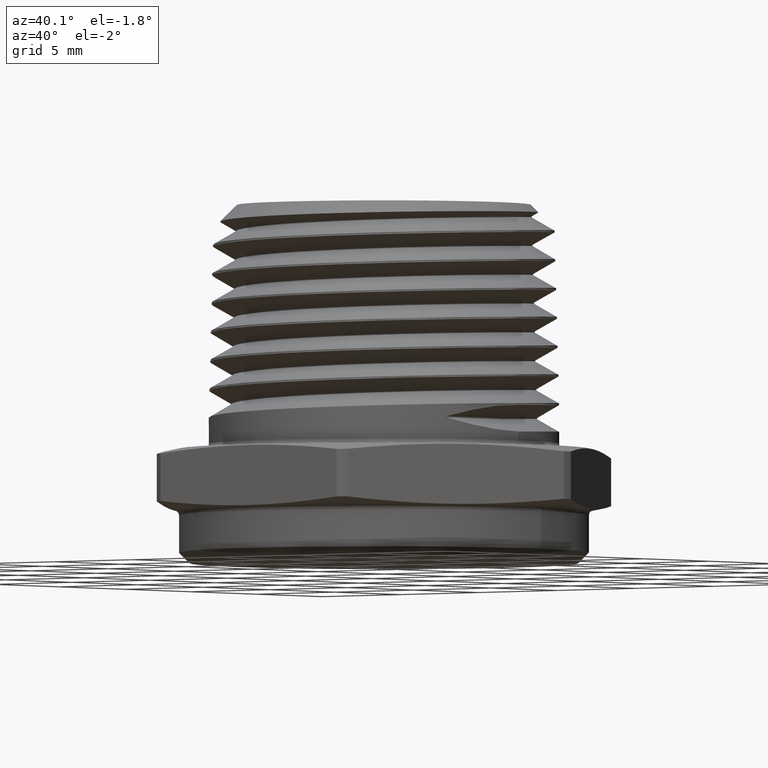
[diagram: clean part render]
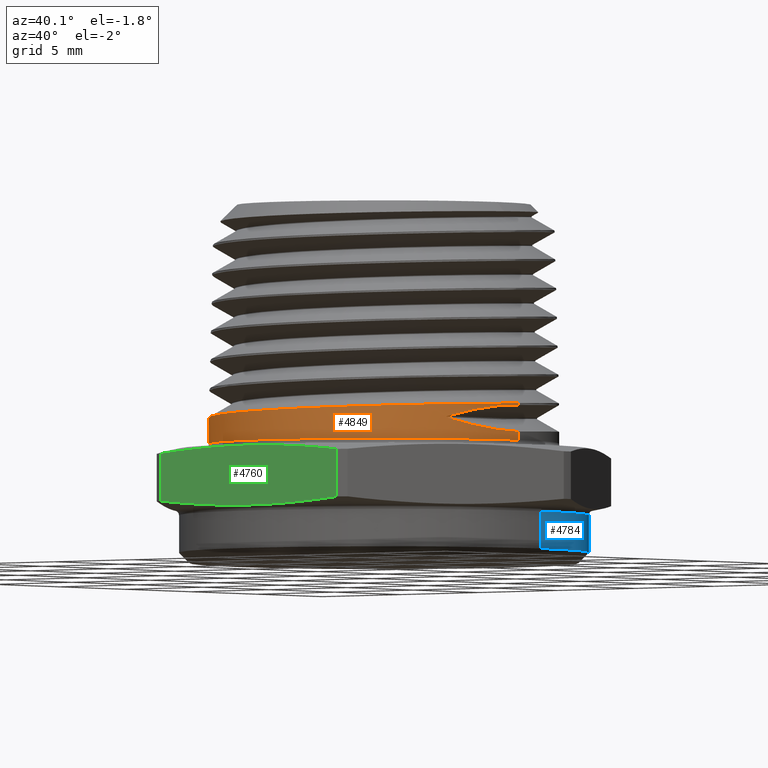
[diagram: same view with three faces highlighted in distinct colors, each labeled with its STEP entity id]
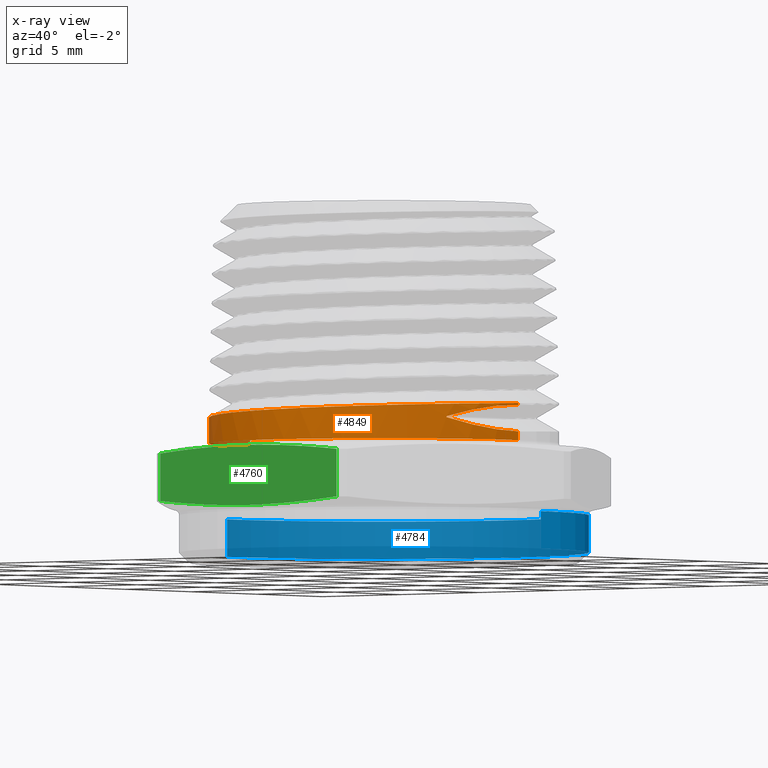
[diagram: x-ray of the same camera — body ghosted, the three highlighted faces saturated]
A machine part, auxiliary view with three faces highlighted in distinct colors.
The next image is the same camera in x-ray (body ghosted, the three faces saturated) — at least one of them is partly hidden behind the body in this view.
Their STEP definitions:

[orange] entity #4849 — the highlighted cylindrical surface (partial cylindrical patch) has radius 8.5725 mm, axis along (-0, -0, -1).
#85 = VERTEX_POINT ( 'NONE', #5159 ) ;
#308 = CARTESIAN_POINT ( 'NONE',  ( 0.3375000000000000200, 4.133182947122317800E-017, 0.5899999999999999700 ) ) ;
#310 = DIRECTION ( 'NONE',  ( -0.0000000000000000000, -0.0000000000000000000, -1.000000000000000000 ) ) ;
#311 = DIRECTION ( 'NONE',  ( -0.0000000000000000000, -0.0000000000000000000, -1.000000000000000000 ) ) ;
#356 = DIRECTION ( 'NONE',  ( -0.0000000000000000000, -0.0000000000000000000, -1.000000000000000000 ) ) ;
#357 = CARTESIAN_POINT ( 'NONE',  ( 0.3375000000000000200, 4.133182947122317800E-017, 0.5899999999999999700 ) ) ;
#358 = CARTESIAN_POINT ( 'NONE',  ( -0.3375000000000000200, 0.0000000000000000000, 0.5899999999999999700 ) ) ;
#560 = CARTESIAN_POINT ( 'NONE',  ( 0.3374999999999998600, 5.805176986536559600E-016, 0.2014728601390426400 ) ) ;
#573 = CARTESIAN_POINT ( 'NONE',  ( 0.3375000000000000200, 4.959819536546779600E-016, 0.1467360340879728100 ) ) ;
#577 = CARTESIAN_POINT ( 'NONE',  ( 0.3375000000000000800, 4.959819536546780600E-016, 0.1976511307851486200 ) ) ;
#579 = CARTESIAN_POINT ( 'NONE',  ( -0.3375000000000000200, 6.471767174693017700E-017, 0.1741044471135051700 ) ) ;
#1050 = CARTESIAN_POINT ( 'NONE',  ( 0.2952062328241049100, -0.1635834041148442300, 0.1711543519520193300 ) ) ;
#1067 = DIRECTION ( 'NONE',  ( -1.000000000000000000, 0.0000000000000000000, 0.0000000000000000000 ) ) ;
#1068 = CARTESIAN_POINT ( 'NONE',  ( 0.0000000000000000000, 0.0000000000000000000, 0.5899999999999999700 ) ) ;
#1069 = DIRECTION ( 'NONE',  ( -0.0000000000000000000, -0.0000000000000000000, -1.000000000000000000 ) ) ;
#1095 = CARTESIAN_POINT ( 'NONE',  ( 0.3375000000000000200, 4.133182947122317800E-017, 0.1299999999999999800 ) ) ;
#1100 = CARTESIAN_POINT ( 'NONE',  ( -0.3375000000000000200, 0.0000000000000000000, 0.1299999999999999800 ) ) ;
#1937 = EDGE_LOOP ( 'NONE', ( #2967, #4620, #4621, #4622, #4623, #4624, #4625, #4626 ) ) ;
#2023 = LINE ( 'NONE', #358, #2033 ) ;
#2027 = LINE ( 'NONE', #308, #2028 ) ;
#2028 = VECTOR ( 'NONE', #310, 39.37007874015748100 ) ;
#2033 = VECTOR ( 'NONE', #311, 39.37007874015748100 ) ;
#2034 = LINE ( 'NONE', #357, #2036 ) ;
#2036 = VECTOR ( 'NONE', #356, 39.37007874015748100 ) ;
#2762 = EDGE_CURVE ( 'NONE', #4663, #4653, #5218, .T. ) ;
#2763 = EDGE_CURVE ( 'NONE', #4660, #4842, #5219, .T. ) ;
#2764 = EDGE_CURVE ( 'NONE', #4842, #85, #4675, .T. ) ;
#2765 = EDGE_CURVE ( 'NONE', #85, #4662, #5220, .T. ) ;
#2814 = EDGE_CURVE ( 'NONE', #4861, #4864, #4734, .T. ) ;
#2863 = EDGE_CURVE ( 'NONE', #4660, #4864, #2027, .T. ) ;
#2867 = EDGE_CURVE ( 'NONE', #4663, #4861, #2023, .T. ) ;
#2869 = EDGE_CURVE ( 'NONE', #4653, #4662, #2034, .T. ) ;
#2900 = AXIS2_PLACEMENT_3D ( 'NONE', #3933, #3935, #3937 ) ;
#2967 = ORIENTED_EDGE ( 'NONE', *, *, #2869, .F. ) ;
#3025 = FACE_OUTER_BOUND ( 'NONE', #1937, .T. ) ;
#3686 = CARTESIAN_POINT ( 'NONE',  ( -0.3369645404158157500, -0.02197321989955729900, 0.1746679456345691900 ) ) ;
#3688 = CARTESIAN_POINT ( 'NONE',  ( -0.3374999999999998600, -0.01098944559102794600, 0.1743881094980423700 ) ) ;
#3757 = CARTESIAN_POINT ( 'NONE',  ( 0.3230963803228608100, -0.1132522264469913700, 0.1550519677858742400 ) ) ;
#3798 = CARTESIAN_POINT ( 'NONE',  ( -0.3375000000000000200, 6.471767174693017700E-017, 0.1741044471135051700 ) ) ;
#3799 = CARTESIAN_POINT ( 'NONE',  ( 0.3230963803228516000, -0.1132522264470270100, 0.1893351970872418900 ) ) ;
#3801 = CARTESIAN_POINT ( 'NONE',  ( -0.3348106432476120100, -0.04392900019937418700, 0.1752313727634535500 ) ) ;
#3803 = CARTESIAN_POINT ( 'NONE',  ( -0.3331825041091704400, -0.05494770295683271100, 0.1755162084725595800 ) ) ;
#3805 = CARTESIAN_POINT ( 'NONE',  ( -0.3266754525170568200, -0.08765684879993851400, 0.1763770072996060400 ) ) ;
#3807 = CARTESIAN_POINT ( 'NONE',  ( -0.3202685761403507000, -0.1087117440324953800, 0.1769543440914180500 ) ) ;
#3808 = CARTESIAN_POINT ( 'NONE',  ( -0.3076520004891599200, -0.1392030356472389000, 0.1778061985975364600 ) ) ;
#3809 = CARTESIAN_POINT ( 'NONE',  ( -0.3029417731762998900, -0.1491836501335386300, 0.1780870400506956400 ) ) ;
#3810 = CARTESIAN_POINT ( 'NONE',  ( -0.2924838707315875500, -0.1687680798143856000, 0.1786540568874291100 ) ) ;
#3811 = CARTESIAN_POINT ( 'NONE',  ( -0.2867424203332228900, -0.1783449521867601900, 0.1789396235332428000 ) ) ;
#3812 = CARTESIAN_POINT ( 'NONE',  ( -0.2683395951555704900, -0.2058826413954180100, 0.1797945095161117000 ) ) ;
#3814 = CARTESIAN_POINT ( 'NONE',  ( -0.2544023082175305700, -0.2228755200838947500, 0.1803710229280821300 ) ) ;
#3816 = CARTESIAN_POINT ( 'NONE',  ( -0.2309911699952086900, -0.2463153971111288800, 0.1812262977068412600 ) ) ;
#3818 = CARTESIAN_POINT ( 'NONE',  ( -0.2227181771932317000, -0.2538227883455261300, 0.1815105797331847700 ) ) ;
#3820 = CARTESIAN_POINT ( 'NONE',  ( -0.2055637111865465700, -0.2679047498253578400, 0.1820774061282385000 ) ) ;
#3822 = CARTESIAN_POINT ( 'NONE',  ( -0.1966994273068493300, -0.2744750423544897700, 0.1823595939077809500 ) ) ;
#3824 = CARTESIAN_POINT ( 'NONE',  ( -0.1692683784412080700, -0.2928110660020377700, 0.1832112026905123300 ) ) ;
#3826 = CARTESIAN_POINT ( 'NONE',  ( -0.1498715857224460200, -0.3032151946568814600, 0.1837885979983499300 ) ) ;
#3828 = CARTESIAN_POINT ( 'NONE',  ( -0.1087835399348994100, -0.3202609684569806000, 0.1849369984780527300 ) ) ;
#3830 = CARTESIAN_POINT ( 'NONE',  ( -0.08758191285678054700, -0.3266783713519043100, 0.1854939808340018700 ) ) ;
#3832 = CARTESIAN_POINT ( 'NONE',  ( -0.05524969542904188700, -0.3331283477838450900, 0.1863448792731467200 ) ) ;
#3834 = CARTESIAN_POINT ( 'NONE',  ( -0.04436066851125240000, -0.3347545891615038000, 0.1866309376903736700 ) ) ;
#3836 = CARTESIAN_POINT ( 'NONE',  ( -0.02235525338757929400, -0.3369402714449988300, 0.1872077647673321100 ) ) ;
#3838 = CARTESIAN_POINT ( 'NONE',  ( -0.01117976180937944500, -0.3374966752329806000, 0.1875000543205662100 ) ) ;
#3840 = CARTESIAN_POINT ( 'NONE',  ( 0.02205705073768541400, -0.3375066043538670900, 0.1883580443980429600 ) ) ;
#3842 = CARTESIAN_POINT ( 'NONE',  ( 0.04393860444842655900, -0.3353519170590913400, 0.1889108707673311200 ) ) ;
#3844 = CARTESIAN_POINT ( 'NONE',  ( 0.08715690654057645100, -0.3267953226078368400, 0.1900478798400784300 ) ) ;
#3846 = CARTESIAN_POINT ( 'NONE',  ( 0.1086681625336857900, -0.3202858836234635000, 0.1906373352952260300 ) ) ;
#3848 = CARTESIAN_POINT ( 'NONE',  ( 0.1493914100420383800, -0.3034370171923028700, 0.1917750419181968300 ) ) ;
#3850 = CARTESIAN_POINT ( 'NONE',  ( 0.1687926522669496700, -0.2930967455382965700, 0.1923277963249877800 ) ) ;
#3852 = CARTESIAN_POINT ( 'NONE',  ( 0.1964311255312097300, -0.2746701036673908100, 0.1931850524542902400 ) ) ;
#3854 = CARTESIAN_POINT ( 'NONE',  ( 0.2054255281404876500, -0.2680092947943323900, 0.1934758586534053300 ) ) ;
#3856 = CARTESIAN_POINT ( 'NONE',  ( 0.2225352871882946800, -0.2539816443445802600, 0.1940529896875611800 ) ) ;
#3858 = CARTESIAN_POINT ( 'NONE',  ( 0.2306974549091718200, -0.2465881706504672000, 0.1943406598464195700 ) ) ;
#3860 = CARTESIAN_POINT ( 'NONE',  ( 0.2540288573239419800, -0.2232907433637705300, 0.1951919063287163000 ) ) ;
#3862 = CARTESIAN_POINT ( 'NONE',  ( 0.2680927014295632600, -0.2062230853577618500, 0.1957479504128308800 ) ) ;
#3864 = CARTESIAN_POINT ( 'NONE',  ( 0.2928533714061928300, -0.1692293129168293800, 0.1968968042422196400 ) ) ;
#3866 = CARTESIAN_POINT ( 'NONE',  ( 0.3032274360908118700, -0.1498100611841283200, 0.1974743034348939200 ) ) ;
#3868 = CARTESIAN_POINT ( 'NONE',  ( 0.3158855728386670800, -0.1193460325270052600, 0.1983260949267054700 ) ) ;
#3870 = CARTESIAN_POINT ( 'NONE',  ( 0.3196175754941710200, -0.1089671752625806100, 0.1986067814250908600 ) ) ;
#3872 = CARTESIAN_POINT ( 'NONE',  ( 0.3260815964747099100, -0.08774982786297939900, 0.1991732322385087500 ) ) ;
#3874 = CARTESIAN_POINT ( 'NONE',  ( 0.3288072958161828400, -0.07690716153949987700, 0.1994591177420901900 ) ) ;
#3876 = CARTESIAN_POINT ( 'NONE',  ( 0.3353101518836810700, -0.04431872240709031800, 0.2003167617276520900 ) ) ;
#3878 = CARTESIAN_POINT ( 'NONE',  ( 0.3375000000000002400, -0.02227797333612575200, 0.2008978153837216500 ) ) ;
#3880 = CARTESIAN_POINT ( 'NONE',  ( 0.3374999999999998600, 5.805176986536559600E-016, 0.2014728601390426400 ) ) ;
#3882 = CARTESIAN_POINT ( 'NONE',  ( 0.2952062328240704400, -0.1635834041149062700, 0.5900000000000242800 ) ) ;
#3884 = CARTESIAN_POINT ( 'NONE',  ( 0.3375000000000000800, -0.05754205221344889400, 0.1467360340879728100 ) ) ;
#3887 = CARTESIAN_POINT ( 'NONE',  ( 0.3375000000000000200, 4.959819536546779600E-016, 0.1467360340879728100 ) ) ;
#3889 = CARTESIAN_POINT ( 'NONE',  ( 0.2952062328241049100, -0.1635834041148442300, 0.1711543519520193300 ) ) ;
#3894 = DIRECTION ( 'NONE',  ( 0.0000000000000000000, 0.0000000000000000000, 1.000000000000000000 ) ) ;
#3896 = CARTESIAN_POINT ( 'NONE',  ( 0.2952062328241047400, -0.1635834041149063200, 0.1732328129211020100 ) ) ;
#3906 = CARTESIAN_POINT ( 'NONE',  ( 0.3375000000000000200, -0.05754205221346761500, 0.1976511307851485400 ) ) ;
#3908 = CARTESIAN_POINT ( 'NONE',  ( 0.3375000000000000800, 4.959819536546780600E-016, 0.1976511307851486200 ) ) ;
#3933 = CARTESIAN_POINT ( 'NONE',  ( 0.0000000000000000000, 0.0000000000000000000, 0.1299999999999999800 ) ) ;
#3935 = DIRECTION ( 'NONE',  ( -0.0000000000000000000, 0.0000000000000000000, 1.000000000000000000 ) ) ;
#3937 = DIRECTION ( 'NONE',  ( 1.000000000000000000, 0.0000000000000000000, 0.0000000000000000000 ) ) ;
#4349 = AXIS2_PLACEMENT_3D ( 'NONE', #1068, #1069, #1067 ) ;
#4620 = ORIENTED_EDGE ( 'NONE', *, *, #2762, .F. ) ;
#4621 = ORIENTED_EDGE ( 'NONE', *, *, #2867, .T. ) ;
#4622 = ORIENTED_EDGE ( 'NONE', *, *, #2814, .T. ) ;
#4623 = ORIENTED_EDGE ( 'NONE', *, *, #2863, .F. ) ;
#4624 = ORIENTED_EDGE ( 'NONE', *, *, #2763, .T. ) ;
#4625 = ORIENTED_EDGE ( 'NONE', *, *, #2764, .T. ) ;
#4626 = ORIENTED_EDGE ( 'NONE', *, *, #2765, .T. ) ;
#4653 = VERTEX_POINT ( 'NONE', #560 ) ;
#4660 = VERTEX_POINT ( 'NONE', #573 ) ;
#4662 = VERTEX_POINT ( 'NONE', #577 ) ;
#4663 = VERTEX_POINT ( 'NONE', #579 ) ;
#4675 = LINE ( 'NONE', #3882, #4676 ) ;
#4676 = VECTOR ( 'NONE', #3894, 39.37007874015748100 ) ;
#4734 = CIRCLE ( 'NONE', #2900, 0.3375000000000000200 ) ;
#4805 = CYLINDRICAL_SURFACE ( 'NONE', #4349, 0.3375000000000000200 ) ;
#4842 = VERTEX_POINT ( 'NONE', #1050 ) ;
#4849 = ADVANCED_FACE ( 'NONE', ( #3025 ), #4805, .T. ) ;
#4861 = VERTEX_POINT ( 'NONE', #1100 ) ;
#4864 = VERTEX_POINT ( 'NONE', #1095 ) ;
#5159 = CARTESIAN_POINT ( 'NONE',  ( 0.2952062328241047400, -0.1635834041149063200, 0.1732328129211020100 ) ) ;
#5218 = B_SPLINE_CURVE_WITH_KNOTS ( 'NONE', 3,
 ( #3798, #3688, #3686, #3801, #3803, #3805, #3807, #3808, #3809, #3810, #3811, #3812, #3814, #3816, #3818, #3820, #3822, #3824, #3826, #3828, #3830, #3832, #3834, #3836, #3838, #3840, #3842, #3844, #3846, #3848, #3850, #3852, #3854, #3856, #3858, #3860, #3862, #3864, #3866, #3868, #3870, #3872, #3874, #3876, #3878, #3880 ),
 .UNSPECIFIED., .F., .F.,
 ( 4, 2, 2, 2, 2, 2, 2, 2, 2, 2, 2, 2, 2, 2, 2, 2, 2, 2, 2, 2, 2, 2, 4 ),
 ( 0.02686333773267626800, 0.02770280303503999300, 0.02854226833740371900, 0.03022119894213117300, 0.03106066424449489800, 0.03190012954685862700, 0.03357906015158607100, 0.03441852545394980000, 0.03525799075631352900, 0.03693692136104097200, 0.03861585196576843000, 0.03945531726813215200, 0.04029478257049587400, 0.04197371317522333200, 0.04365264377995078200, 0.04533157438467823300, 0.04617103968704196200, 0.04701050498940567700, 0.04868943559413313500, 0.05036836619886058500, 0.05120783150122431400, 0.05204729680358804300, 0.05372622740831549400 ),
 .UNSPECIFIED. ) ;
#5219 =( BOUNDED_CURVE ( )  B_SPLINE_CURVE ( 3, ( #3887, #3884, #3757, #3889 ),
 .UNSPECIFIED., .F., .T. ) 
 B_SPLINE_CURVE_WITH_KNOTS ( ( 4, 4 ),
 ( 0.0000000000000000000, 0.5060105123223457300 ),
 .UNSPECIFIED. ) 
 CURVE ( )  GEOMETRIC_REPRESENTATION_ITEM ( )  RATIONAL_B_SPLINE_CURVE ( ( 1.000000000000000000, 0.9787763567751383000, 0.9787763567751383000, 1.000000000000000000 ) ) 
 REPRESENTATION_ITEM ( '' )  );
#5220 =( BOUNDED_CURVE ( )  B_SPLINE_CURVE ( 3, ( #3896, #3799, #3906, #3908 ),
 .UNSPECIFIED., .F., .T. ) 
 B_SPLINE_CURVE_WITH_KNOTS ( ( 4, 4 ),
 ( 2.635582141267286600, 3.141592653589793100 ),
 .UNSPECIFIED. ) 
 CURVE ( )  GEOMETRIC_REPRESENTATION_ITEM ( )  RATIONAL_B_SPLINE_CURVE ( ( 1.000000000000000000, 0.9787763567751248700, 0.9787763567751248700, 1.000000000000000000 ) ) 
 REPRESENTATION_ITEM ( '' )  );

[blue] entity #4784 — the highlighted cylindrical surface (partial cylindrical patch) has radius 10.033 mm, axis along (-0, -0, 1).
#551 = CARTESIAN_POINT ( 'NONE',  ( 0.3950000000000000200, 0.0000000000000000000, -0.008097840331950146400 ) ) ;
#584 = CARTESIAN_POINT ( 'NONE',  ( 0.3950000000000000200, 0.0000000000000000000, -0.08000000000000008500 ) ) ;
#997 = DIRECTION ( 'NONE',  ( 1.000000000000000000, 0.0000000000000000000, 0.0000000000000000000 ) ) ;
#999 = CARTESIAN_POINT ( 'NONE',  ( 0.0000000000000000000, 0.0000000000000000000, -0.1000000000000000100 ) ) ;
#1000 = DIRECTION ( 'NONE',  ( -0.0000000000000000000, -0.0000000000000000000, 1.000000000000000000 ) ) ;
#1097 = CARTESIAN_POINT ( 'NONE',  ( -0.3950000000000000200, 4.837354856632045600E-017, -0.08000000000000008500 ) ) ;
#1101 = CARTESIAN_POINT ( 'NONE',  ( -0.3950000000000000200, 4.837354856632045600E-017, -0.008097840331950146400 ) ) ;
#1183 = ORIENTED_EDGE ( 'NONE', *, *, #2836, .T. ) ;
#1184 = ORIENTED_EDGE ( 'NONE', *, *, #2831, .T. ) ;
#1185 = ORIENTED_EDGE ( 'NONE', *, *, #2826, .T. ) ;
#1186 = ORIENTED_EDGE ( 'NONE', *, *, #2818, .F. ) ;
#1933 = EDGE_LOOP ( 'NONE', ( #1183, #1184, #1185, #1186 ) ) ;
#1982 = VECTOR ( 'NONE', #3918, 39.37007874015748100 ) ;
#1993 = CIRCLE ( 'NONE', #2908, 0.3950000000000000200 ) ;
#1994 = LINE ( 'NONE', #4045, #1998 ) ;
#1998 = VECTOR ( 'NONE', #3993, 39.37007874015748100 ) ;
#2001 = CIRCLE ( 'NONE', #4271, 0.3950000000000000200 ) ;
#2818 = EDGE_CURVE ( 'NONE', #4740, #4745, #4738, .T. ) ;
#2826 = EDGE_CURVE ( 'NONE', #4862, #4745, #1993, .T. ) ;
#2831 = EDGE_CURVE ( 'NONE', #4858, #4862, #1994, .T. ) ;
#2836 = EDGE_CURVE ( 'NONE', #4740, #4858, #2001, .T. ) ;
#2908 = AXIS2_PLACEMENT_3D ( 'NONE', #4013, #4015, #4017 ) ;
#2987 = FACE_OUTER_BOUND ( 'NONE', #1933, .T. ) ;
#2997 = CYLINDRICAL_SURFACE ( 'NONE', #4330, 0.3950000000000000200 ) ;
#3918 = DIRECTION ( 'NONE',  ( -0.0000000000000000000, -0.0000000000000000000, 1.000000000000000000 ) ) ;
#3956 = CARTESIAN_POINT ( 'NONE',  ( 0.3950000000000000200, 0.0000000000000000000, -0.1000000000000000100 ) ) ;
#3993 = DIRECTION ( 'NONE',  ( -0.0000000000000000000, -0.0000000000000000000, 1.000000000000000000 ) ) ;
#4013 = CARTESIAN_POINT ( 'NONE',  ( 0.0000000000000000000, 0.0000000000000000000, -0.008097840331950146400 ) ) ;
#4015 = DIRECTION ( 'NONE',  ( -0.0000000000000000000, -0.0000000000000000000, -1.000000000000000000 ) ) ;
#4017 = DIRECTION ( 'NONE',  ( -1.000000000000000000, 0.0000000000000000000, 0.0000000000000000000 ) ) ;
#4045 = CARTESIAN_POINT ( 'NONE',  ( -0.3950000000000000200, 4.837354856632045600E-017, -0.1000000000000000100 ) ) ;
#4085 = CARTESIAN_POINT ( 'NONE',  ( 0.0000000000000000000, 0.0000000000000000000, -0.08000000000000008500 ) ) ;
#4086 = DIRECTION ( 'NONE',  ( 0.0000000000000000000, 0.0000000000000000000, 1.000000000000000000 ) ) ;
#4088 = DIRECTION ( 'NONE',  ( -1.000000000000000000, 0.0000000000000000000, 0.0000000000000000000 ) ) ;
#4271 = AXIS2_PLACEMENT_3D ( 'NONE', #4085, #4086, #4088 ) ;
#4330 = AXIS2_PLACEMENT_3D ( 'NONE', #999, #1000, #997 ) ;
#4738 = LINE ( 'NONE', #3956, #1982 ) ;
#4740 = VERTEX_POINT ( 'NONE', #584 ) ;
#4745 = VERTEX_POINT ( 'NONE', #551 ) ;
#4784 = ADVANCED_FACE ( 'NONE', ( #2987 ), #2997, .T. ) ;
#4858 = VERTEX_POINT ( 'NONE', #1097 ) ;
#4862 = VERTEX_POINT ( 'NONE', #1101 ) ;

[green] entity #4760 — the highlighted planar face has unit normal (0, 1, 0).
#82 = VERTEX_POINT ( 'NONE', #5155 ) ;
#86 = VERTEX_POINT ( 'NONE', #5012 ) ;
#87 = VERTEX_POINT ( 'NONE', #5156 ) ;
#92 = VERTEX_POINT ( 'NONE', #5046 ) ;
#627 = PLANE ( 'NONE',  #4291 ) ;
#628 = CARTESIAN_POINT ( 'NONE',  ( -0.2338268590217984200, -0.4049999999999999700, 0.1200000000000000000 ) ) ;
#633 = DIRECTION ( 'NONE',  ( 0.0000000000000000000, 1.000000000000000000, 0.0000000000000000000 ) ) ;
#634 = DIRECTION ( 'NONE',  ( 0.0000000000000000000, -0.0000000000000000000, 1.000000000000000000 ) ) ;
#651 = ORIENTED_EDGE ( 'NONE', *, *, #2791, .T. ) ;
#653 = ORIENTED_EDGE ( 'NONE', *, *, #2778, .T. ) ;
#655 = ORIENTED_EDGE ( 'NONE', *, *, #2788, .T. ) ;
#657 = ORIENTED_EDGE ( 'NONE', *, *, #2771, .T. ) ;
#1920 = EDGE_LOOP ( 'NONE', ( #651, #653, #655, #657 ) ) ;
#2045 = FACE_OUTER_BOUND ( 'NONE', #1920, .T. ) ;
#2771 = EDGE_CURVE ( 'NONE', #82, #86, #4678, .T. ) ;
#2778 = EDGE_CURVE ( 'NONE', #87, #92, #4691, .T. ) ;
#2788 = EDGE_CURVE ( 'NONE', #92, #82, #5224, .T. ) ;
#2791 = EDGE_CURVE ( 'NONE', #86, #87, #5227, .T. ) ;
#3915 = DIRECTION ( 'NONE',  ( -0.0000000000000000000, -0.0000000000000000000, -1.000000000000000000 ) ) ;
#4011 = CARTESIAN_POINT ( 'NONE',  ( -0.2215832922029030100, -0.4049999999999998600, 0.0000000000000000000 ) ) ;
#4043 = DIRECTION ( 'NONE',  ( 0.0000000000000000000, 0.0000000000000000000, 1.000000000000000000 ) ) ;
#4048 = CARTESIAN_POINT ( 'NONE',  ( 0.2215832922029030100, -0.4049999999999998600, 0.0000000000000000000 ) ) ;
#4093 = CARTESIAN_POINT ( 'NONE',  ( 0.2215832922029030100, -0.4049999999999998600, 0.1058323148701303800 ) ) ;
#4096 = CARTESIAN_POINT ( 'NONE',  ( 0.1478797044767214400, -0.4049999999999998600, 0.1133517257805391900 ) ) ;
#4109 = CARTESIAN_POINT ( 'NONE',  ( 0.07410859054405169500, -0.4049999999999999200, 0.1178652587683187800 ) ) ;
#4111 = CARTESIAN_POINT ( 'NONE',  ( -0.03669986454074530100, -0.4049999999999999700, 0.1178790002141681500 ) ) ;
#4113 = CARTESIAN_POINT ( 'NONE',  ( -0.07366055179631760000, -0.4050000000000000300, 0.1167913988028559700 ) ) ;
#4115 = CARTESIAN_POINT ( 'NONE',  ( -0.1476261385661213300, -0.4049999999999999700, 0.1126481207821148400 ) ) ;
#4117 = CARTESIAN_POINT ( 'NONE',  ( -0.1846688683639233800, -0.4050000000000000300, 0.1095984099806900600 ) ) ;
#4119 = CARTESIAN_POINT ( 'NONE',  ( -0.2215832922029030100, -0.4049999999999998600, 0.1058323148701303800 ) ) ;
#4133 = CARTESIAN_POINT ( 'NONE',  ( -0.1846688683639232400, -0.4049999999999999200, 0.01040159001930993100 ) ) ;
#4135 = CARTESIAN_POINT ( 'NONE',  ( -0.2215832922029030100, -0.4049999999999998600, 0.01416768512986962300 ) ) ;
#4148 = CARTESIAN_POINT ( 'NONE',  ( -0.1476261385661213300, -0.4050000000000000300, 0.007351879217885152200 ) ) ;
#4150 = CARTESIAN_POINT ( 'NONE',  ( -0.07366055179631760000, -0.4049999999999998600, 0.003208601197143993600 ) ) ;
#4152 = CARTESIAN_POINT ( 'NONE',  ( -0.03669986454074521800, -0.4050000000000000300, 0.002120999785831824700 ) ) ;
#4154 = CARTESIAN_POINT ( 'NONE',  ( 0.07410859054405169500, -0.4049999999999999200, 0.002134741231681211900 ) ) ;
#4156 = CARTESIAN_POINT ( 'NONE',  ( 0.1478797044767214400, -0.4049999999999999700, 0.006648274219460789800 ) ) ;
#4158 = CARTESIAN_POINT ( 'NONE',  ( 0.2215832922029030100, -0.4049999999999998600, 0.01416768512986962300 ) ) ;
#4291 = AXIS2_PLACEMENT_3D ( 'NONE', #628, #633, #634 ) ;
#4678 = LINE ( 'NONE', #4011, #4684 ) ;
#4684 = VECTOR ( 'NONE', #3915, 39.37007874015748100 ) ;
#4691 = LINE ( 'NONE', #4048, #4695 ) ;
#4695 = VECTOR ( 'NONE', #4043, 39.37007874015748100 ) ;
#4760 = ADVANCED_FACE ( 'NONE', ( #2045 ), #627, .F. ) ;
#5012 = CARTESIAN_POINT ( 'NONE',  ( -0.2215832922029030100, -0.4049999999999998600, 0.01416768512986962300 ) ) ;
#5046 = CARTESIAN_POINT ( 'NONE',  ( 0.2215832922029030100, -0.4049999999999998600, 0.1058323148701303800 ) ) ;
#5155 = CARTESIAN_POINT ( 'NONE',  ( -0.2215832922029030100, -0.4049999999999998600, 0.1058323148701303800 ) ) ;
#5156 = CARTESIAN_POINT ( 'NONE',  ( 0.2215832922029030100, -0.4049999999999998600, 0.01416768512986962300 ) ) ;
#5224 = B_SPLINE_CURVE_WITH_KNOTS ( 'NONE', 3,
 ( #4093, #4096, #4109, #4111, #4113, #4115, #4117, #4119 ),
 .UNSPECIFIED., .F., .F.,
 ( 4, 2, 2, 4 ),
 ( 0.02276526748333866000, 0.02841013490012903400, 0.03123256860852421900, 0.03405500231691940800 ),
 .UNSPECIFIED. ) ;
#5227 = B_SPLINE_CURVE_WITH_KNOTS ( 'NONE', 3,
 ( #4135, #4133, #4148, #4150, #4152, #4154, #4156, #4158 ),
 .UNSPECIFIED., .F., .F.,
 ( 4, 2, 2, 4 ),
 ( 0.01016691778242288100, 0.01299211520085471300, 0.01581731261928654600, 0.02146770745615020700 ),
 .UNSPECIFIED. ) ;